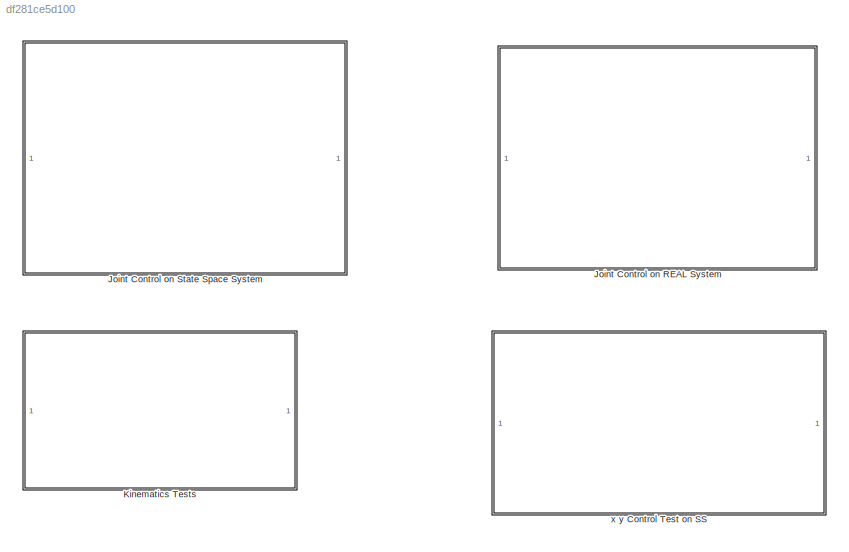
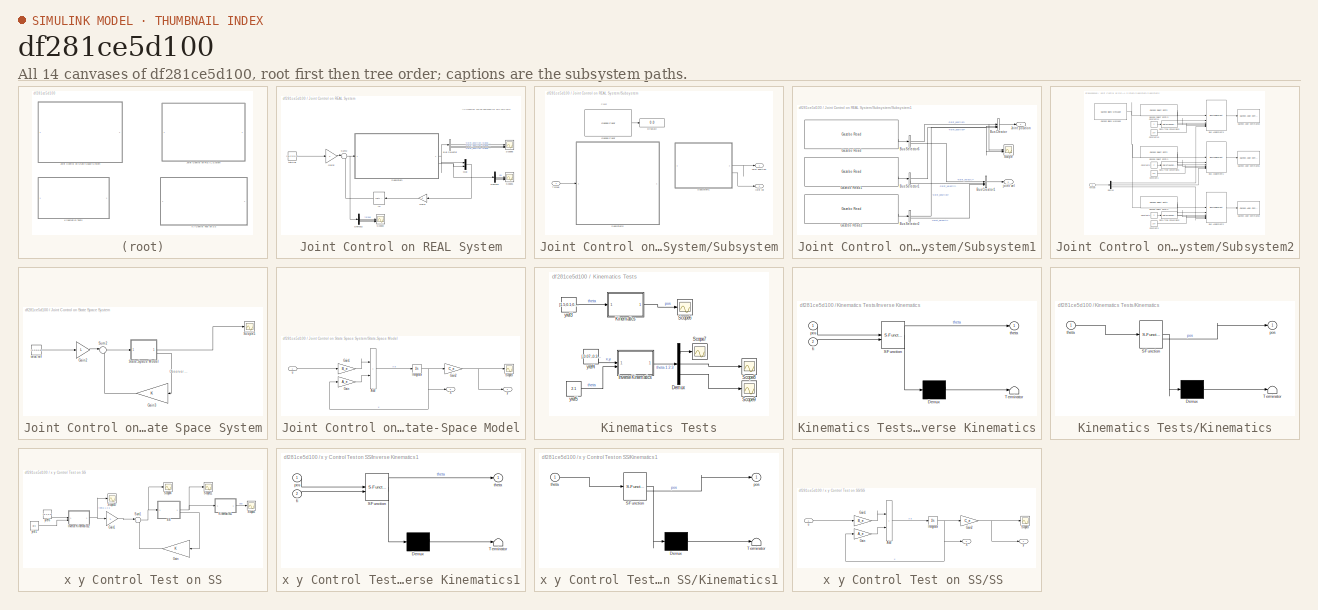
[diagram: thumbnail index - all 14 canvases of the model, root first then tree order]
MODEL slx_df281ce5d100
KIND model
CONFIG AbsTol = auto
CONFIG EnableMultiTasking = off
CONFIG FixedStep = 1e-4
CONFIG MaxStep = auto
CONFIG MinStep = auto
CONFIG RelTol = 1e-3
CONFIG SampleTimeConstraint = Unconstrained
CONFIG SolverName = ode5
CONFIG StartTime = 0.0
CONFIG StopTime = 0.5
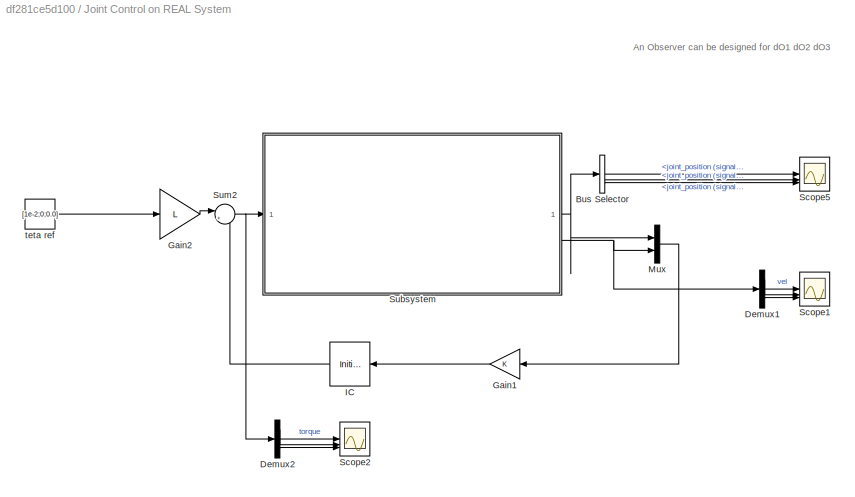
BLOCK [SubSystem] Joint Control on REAL System
BLOCK [BusSelector] Joint Control on REAL System/Bus Selector
  OutputSignals = joint_position (signal 1),joint_position (signal 2),joint_position (signal 3)
BLOCK [Demux] Joint Control on REAL System/Demux1
  Outputs = 3
BLOCK [Demux] Joint Control on REAL System/Demux2
  Outputs = 3
BLOCK [Gain] Joint Control on REAL System/Gain1
  Gain = K
  Multiplication = Matrix(K*u)
BLOCK [Gain] Joint Control on REAL System/Gain2
  Gain = L
  Multiplication = Matrix(K*u)
BLOCK [InitialCondition] Joint Control on REAL System/IC
  Value = 0
BLOCK [Mux] Joint Control on REAL System/Mux
  DisplayOption = bar
  Inputs = 2
BLOCK [Scope] Joint Control on REAL System/Scope1
  Floating = off
  NumInputPorts = 3
  ScopeSpecificationString = Simulink.scopes.TimeScopeBlockCfg('CurrentConfiguration', extmgr.ConfigurationSet(extmgr.Configuration('Core','General UI',true),extmgr.Configuration('Core','Source UI',true),extmgr.Configuration('Sources','WiredSimulink',true,'DataLoggingVariableName','ScopeData2'),extmgr.Configuration('Visuals','Time Domain',true,'SerializedDisplays',{struct('MinYLimReal','-0.76648','MaxYLimReal','6.89828','YLab...<+1488ch>
BLOCK [Scope] Joint Control on REAL System/Scope2
  Floating = off
  NumInputPorts = 3
  ScopeSpecificationString = Simulink.scopes.TimeScopeBlockCfg('CurrentConfiguration', extmgr.ConfigurationSet(extmgr.Configuration('Core','General UI',true),extmgr.Configuration('Core','Source UI',true),extmgr.Configuration('Sources','WiredSimulink',true,'DataLoggingVariableName','ScopeData3'),extmgr.Configuration('Visuals','Time Domain',true,'SerializedDisplays',{struct('MinYLimReal','-0.125','MaxYLimReal','1.125','YLabelRe...<+1568ch>
BLOCK [Scope] Joint Control on REAL System/Scope5
  Floating = off
  NumInputPorts = 3
  ScopeSpecificationString = Simulink.scopes.TimeScopeBlockCfg('CurrentConfiguration', extmgr.ConfigurationSet(extmgr.Configuration('Core','General UI',true),extmgr.Configuration('Core','Source UI',true),extmgr.Configuration('Sources','WiredSimulink',true,'DataLoggingVariableName','ScopeData1'),extmgr.Configuration('Visuals','Time Domain',true,'SerializedDisplays',{struct('MinYLimReal','-0.00077','MaxYLimReal','0.0069','YLabe...<+1615ch>
BLOCK [SubSystem] Joint Control on REAL System/Subsystem
BLOCK [Display] Joint Control on REAL System/Subsystem/Display2
  Decimation = 1
BLOCK [Reference] Joint Control on REAL System/Subsystem/Gazebo Pacer  REF=robotgazebolib/Gazebo Pacer
  SourceBlock = robotgazebolib/Gazebo Pacer
  SourceType = Gazebo Pacer
BLOCK [Outport] Joint Control on REAL System/Subsystem/Joint position
BLOCK [SubSystem] Joint Control on REAL System/Subsystem/Subsystem1
BLOCK [BusCreator] Joint Control on REAL System/Subsystem/Subsystem1/Bus Creator
  DisplayOption = bar
  InheritFromInputs = on
  Inputs = 3
BLOCK [BusCreator] Joint Control on REAL System/Subsystem/Subsystem1/Bus Creator1
  DisplayOption = bar
  InheritFromInputs = on
  Inputs = 3
BLOCK [BusSelector] Joint Control on REAL System/Subsystem/Subsystem1/Bus Selector1
  OutputSignals = joint_position,joint_velocity
BLOCK [BusSelector] Joint Control on REAL System/Subsystem/Subsystem1/Bus Selector2
  OutputSignals = joint_position,joint_velocity
BLOCK [BusSelector] Joint Control on REAL System/Subsystem/Subsystem1/Bus Selector6
  OutputSignals = joint_position,joint_velocity
BLOCK [Reference] Joint Control on REAL System/Subsystem/Subsystem1/Gazebo Read  REF=robotgazebolib/Gazebo Read
  SourceBlock = robotgazebolib/Gazebo Read
  SourceType = Gazebo Read
BLOCK [Reference] Joint Control on REAL System/Subsystem/Subsystem1/Gazebo Read1  REF=robotgazebolib/Gazebo Read
  SourceBlock = robotgazebolib/Gazebo Read
  SourceType = Gazebo Read
BLOCK [Reference] Joint Control on REAL System/Subsystem/Subsystem1/Gazebo Read2  REF=robotgazebolib/Gazebo Read
  SourceBlock = robotgazebolib/Gazebo Read
  SourceType = Gazebo Read
BLOCK [Outport] Joint Control on REAL System/Subsystem/Subsystem1/Joint position
BLOCK [Scope] Joint Control on REAL System/Subsystem/Subsystem1/Scope
  Floating = off
  NumInputPorts = 2
  ScopeSpecificationString = Simulink.scopes.TimeScopeBlockCfg('CurrentConfiguration', extmgr.ConfigurationSet(extmgr.Configuration('Core','General UI',true),extmgr.Configuration('Core','Source UI',true),extmgr.Configuration('Sources','WiredSimulink',true,'DataLoggingVariableName','ScopeData1'),extmgr.Configuration('Visuals','Time Domain',true,'SerializedDisplays',{struct('MinYLimReal','-3.74526','MaxYLimReal','3.87638','YLab...<+7030ch>
BLOCK [Outport] Joint Control on REAL System/Subsystem/Subsystem1/joint vel
  Port = 2
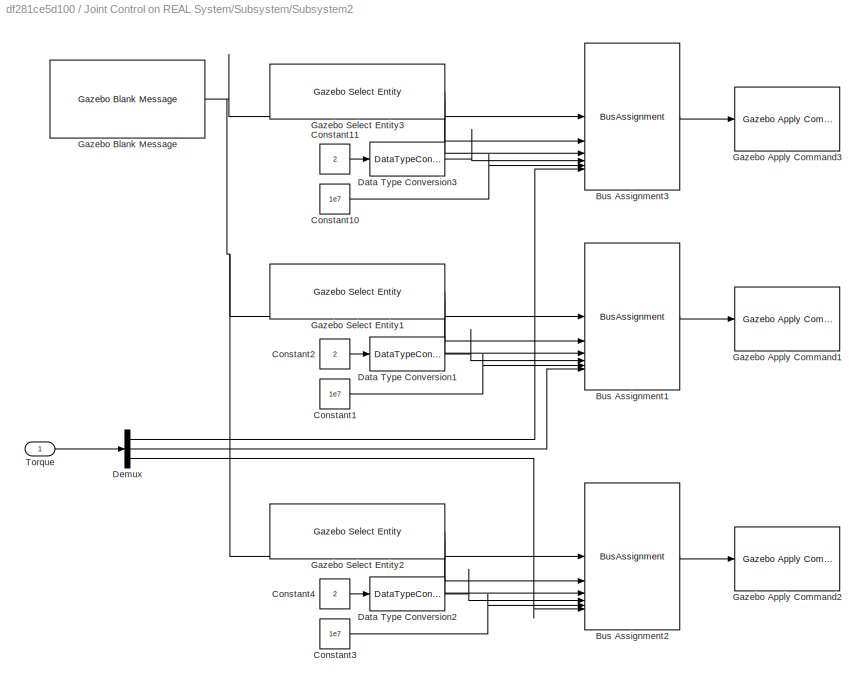
BLOCK [SubSystem] Joint Control on REAL System/Subsystem/Subsystem2
BLOCK [BusAssignment] Joint Control on REAL System/Subsystem/Subsystem2/Bus Assignment1
  AssignedSignals = model_name,joint_name,index,duration.nano_seconds,effort
BLOCK [BusAssignment] Joint Control on REAL System/Subsystem/Subsystem2/Bus Assignment2
  AssignedSignals = model_name,joint_name,index,duration.nano_seconds,effort
BLOCK [BusAssignment] Joint Control on REAL System/Subsystem/Subsystem2/Bus Assignment3
  AssignedSignals = model_name,joint_name,index,duration.nano_seconds,effort
BLOCK [Constant] Joint Control on REAL System/Subsystem/Subsystem2/Constant1
  Value = 1e7
BLOCK [Constant] Joint Control on REAL System/Subsystem/Subsystem2/Constant10
  Value = 1e7
BLOCK [Constant] Joint Control on REAL System/Subsystem/Subsystem2/Constant11
  Value = 2
BLOCK [Constant] Joint Control on REAL System/Subsystem/Subsystem2/Constant2
  Value = 2
BLOCK [Constant] Joint Control on REAL System/Subsystem/Subsystem2/Constant3
  Value = 1e7
BLOCK [Constant] Joint Control on REAL System/Subsystem/Subsystem2/Constant4
  Value = 2
BLOCK [DataTypeConversion] Joint Control on REAL System/Subsystem/Subsystem2/Data Type Conversion1
  OutDataTypeStr = uint32
  RndMeth = Floor
  SaturateOnIntegerOverflow = off
BLOCK [DataTypeConversion] Joint Control on REAL System/Subsystem/Subsystem2/Data Type Conversion2
  OutDataTypeStr = uint32
  RndMeth = Floor
  SaturateOnIntegerOverflow = off
BLOCK [DataTypeConversion] Joint Control on REAL System/Subsystem/Subsystem2/Data Type Conversion3
  OutDataTypeStr = uint32
  RndMeth = Floor
  SaturateOnIntegerOverflow = off
BLOCK [Demux] Joint Control on REAL System/Subsystem/Subsystem2/Demux
  Outputs = 3
BLOCK [Reference] Joint Control on REAL System/Subsystem/Subsystem2/Gazebo Apply Command1  REF=robotgazebolib/Gazebo Apply Command
  SourceBlock = robotgazebolib/Gazebo Apply Command
  SourceType = Gazebo Apply Command
BLOCK [Reference] Joint Control on REAL System/Subsystem/Subsystem2/Gazebo Apply Command2  REF=robotgazebolib/Gazebo Apply Command
  SourceBlock = robotgazebolib/Gazebo Apply Command
  SourceType = Gazebo Apply Command
BLOCK [Reference] Joint Control on REAL System/Subsystem/Subsystem2/Gazebo Apply Command3  REF=robotgazebolib/Gazebo Apply Command
  SourceBlock = robotgazebolib/Gazebo Apply Command
  SourceType = Gazebo Apply Command
BLOCK [Reference] Joint Control on REAL System/Subsystem/Subsystem2/Gazebo Blank Message  REF=robotgazebolib/Gazebo Blank Message
  SourceBlock = robotgazebolib/Gazebo Blank Message
  SourceType = Gazebo Blank Message
BLOCK [Reference] Joint Control on REAL System/Subsystem/Subsystem2/Gazebo Select Entity1  REF=robotgazebolib/Gazebo Select Entity
  SourceBlock = robotgazebolib/Gazebo Select Entity
  SourceType = Gazebo Select Entity
BLOCK [Reference] Joint Control on REAL System/Subsystem/Subsystem2/Gazebo Select Entity2  REF=robotgazebolib/Gazebo Select Entity
  SourceBlock = robotgazebolib/Gazebo Select Entity
  SourceType = Gazebo Select Entity
BLOCK [Reference] Joint Control on REAL System/Subsystem/Subsystem2/Gazebo Select Entity3  REF=robotgazebolib/Gazebo Select Entity
  SourceBlock = robotgazebolib/Gazebo Select Entity
  SourceType = Gazebo Select Entity
BLOCK [Inport] Joint Control on REAL System/Subsystem/Subsystem2/Torque
BLOCK [Inport] Joint Control on REAL System/Subsystem/Torque
BLOCK [Outport] Joint Control on REAL System/Subsystem/joint vel
  Port = 2
BLOCK [Sum] Joint Control on REAL System/Sum2
  Inputs = |+-
BLOCK [Constant] Joint Control on REAL System/teta ref
  Value = [1e-2;0;0.0]
BLOCK [SubSystem] Joint Control on State Space System
  Commented = on
BLOCK [Gain] Joint Control on State Space System/Gain2
  Gain = L
  Multiplication = Matrix(K*u)
BLOCK [Gain] Joint Control on State Space System/Gain3
  Gain = K
  Multiplication = Matrix(K*u)
BLOCK [Scope] Joint Control on State Space System/Scope5
  Floating = off
  NumInputPorts = 1
  ScopeSpecificationString = Simulink.scopes.TimeScopeBlockCfg('CurrentConfiguration', extmgr.ConfigurationSet(extmgr.Configuration('Core','General UI',true),extmgr.Configuration('Core','Source UI',true),extmgr.Configuration('Sources','WiredSimulink',true,'DataLoggingVariableName','ScopeData1'),extmgr.Configuration('Visuals','Time Domain',true,'SerializedDisplays',{struct('MinYLimReal','-0.02658','MaxYLimReal','0.23557','YLab...<+1623ch>
BLOCK [SubSystem] Joint Control on State Space System/State-Space Model
BLOCK [Sum] Joint Control on State Space System/State-Space Model/Add
  IconShape = rectangular
BLOCK [Gain] Joint Control on State Space System/State-Space Model/Gain
  Gain = A_e
  Multiplication = Matrix(K*u)
BLOCK [Gain] Joint Control on State Space System/State-Space Model/Gain1
  Gain = B_e
  Multiplication = Matrix(K*u)
BLOCK [Gain] Joint Control on State Space System/State-Space Model/Gain2
  Gain = C_e
  Multiplication = Matrix(K*u)
BLOCK [Integrator] Joint Control on State Space System/State-Space Model/Integrator
BLOCK [Scope] Joint Control on State Space System/State-Space Model/Scope3
  Floating = off
  NumInputPorts = 1
  ScopeSpecificationString = Simulink.scopes.TimeScopeBlockCfg('CurrentConfiguration', extmgr.ConfigurationSet(extmgr.Configuration('Core','General UI',true),extmgr.Configuration('Core','Source UI',true),extmgr.Configuration('Sources','WiredSimulink',true,'DataLoggingVariableName','ScopeData1'),extmgr.Configuration('Visuals','Time Domain',true,'SerializedDisplays',{struct('MinYLimReal','-0.02658','MaxYLimReal','0.23557','YLab...<+1384ch>
BLOCK [Outport] Joint Control on State Space System/State-Space Model/X
  Port = 2
BLOCK [Inport] Joint Control on State Space System/State-Space Model/u
BLOCK [Outport] Joint Control on State Space System/State-Space Model/y
BLOCK [Sum] Joint Control on State Space System/Sum2
  Inputs = |+-
BLOCK [Constant] Joint Control on State Space System/teta ref
  Value = [0.2;0;0.5]
BLOCK [SubSystem] Kinematics Tests
  Commented = on
BLOCK [Demux] Kinematics Tests/Demux
  Commented = on
  Outputs = 3
BLOCK [SubSystem] Kinematics Tests/Inverse Kinematics
  Commented = on
  ErrorFcn = Stateflow.Translate.translate
  LibrarySourceBlock = simulink/User-Defined\nFunctions/MATLAB Function
  PermitHierarchicalResolution = ExplicitOnly
  SFBlockType = MATLAB Function
  TreatAsAtomicUnit = on
BLOCK [Demux] Kinematics Tests/Inverse Kinematics/ Demux 
  Outputs = 1
BLOCK [S-Function] Kinematics Tests/Inverse Kinematics/ SFunction 
  EnableBusSupport = on
  FunctionName = sf_sfun
  PortCounts = [2 2]
  SFcnIsStateOwnerBlock = off
  SFunctionDeploymentMode = off
  Tag = Stateflow S-Function 7
BLOCK [Terminator] Kinematics Tests/Inverse Kinematics/ Terminator 
BLOCK [Inport] Kinematics Tests/Inverse Kinematics/fi
  Port = 2
BLOCK [Inport] Kinematics Tests/Inverse Kinematics/pos
BLOCK [Outport] Kinematics Tests/Inverse Kinematics/theta
BLOCK [SubSystem] Kinematics Tests/Kinematics
  Commented = on
  ErrorFcn = Stateflow.Translate.translate
  LibrarySourceBlock = simulink/User-Defined\nFunctions/MATLAB Function
  PermitHierarchicalResolution = ExplicitOnly
  SFBlockType = MATLAB Function
  TreatAsAtomicUnit = on
BLOCK [Demux] Kinematics Tests/Kinematics/ Demux 
  Outputs = 1
BLOCK [S-Function] Kinematics Tests/Kinematics/ SFunction 
  EnableBusSupport = on
  FunctionName = sf_sfun
  PortCounts = [1 2]
  SFcnIsStateOwnerBlock = off
  SFunctionDeploymentMode = off
  Tag = Stateflow S-Function 6
BLOCK [Terminator] Kinematics Tests/Kinematics/ Terminator 
BLOCK [Outport] Kinematics Tests/Kinematics/pos
BLOCK [Inport] Kinematics Tests/Kinematics/theta
BLOCK [Scope] Kinematics Tests/Scope6
  Commented = on
  Floating = off
  NumInputPorts = 1
  ScopeSpecificationString = Simulink.scopes.TimeScopeBlockCfg('CurrentConfiguration', extmgr.ConfigurationSet(extmgr.Configuration('Core','General UI',true),extmgr.Configuration('Core','Source UI',true),extmgr.Configuration('Sources','WiredSimulink',true,'DataLoggingVariableName','ScopeData1'),extmgr.Configuration('Visuals','Time Domain',true,'SerializedDisplays',{struct('MinYLimReal','-0.12411','MaxYLimReal','0.43562','YLab...<+1426ch>
BLOCK [Scope] Kinematics Tests/Scope7
  Commented = on
  Floating = off
  NumInputPorts = 1
  ScopeSpecificationString = Simulink.scopes.TimeScopeBlockCfg('CurrentConfiguration', extmgr.ConfigurationSet(extmgr.Configuration('Core','General UI',true),extmgr.Configuration('Core','Source UI',true),extmgr.Configuration('Sources','WiredSimulink',true,'DataLoggingVariableName','ScopeData2'),extmgr.Configuration('Visuals','Time Domain',true,'SerializedDisplays',{struct('MinYLimReal','-1.01997','MaxYLimReal','-0.81997','YLa...<+1422ch>
BLOCK [Scope] Kinematics Tests/Scope8
  Commented = on
  Floating = off
  NumInputPorts = 1
  ScopeSpecificationString = Simulink.scopes.TimeScopeBlockCfg('CurrentConfiguration', extmgr.ConfigurationSet(extmgr.Configuration('Core','General UI',true),extmgr.Configuration('Core','Source UI',true),extmgr.Configuration('Sources','WiredSimulink',true,'DataLoggingVariableName','ScopeData3'),extmgr.Configuration('Visuals','Time Domain',true,'SerializedDisplays',{struct('MinYLimReal','0.37839','MaxYLimReal','2.37839','YLabe...<+1418ch>
BLOCK [Scope] Kinematics Tests/Scope9
  Commented = on
  Floating = off
  NumInputPorts = 1
  ScopeSpecificationString = Simulink.scopes.TimeScopeBlockCfg('CurrentConfiguration', extmgr.ConfigurationSet(extmgr.Configuration('Core','General UI',true),extmgr.Configuration('Core','Source UI',true),extmgr.Configuration('Sources','WiredSimulink',true,'DataLoggingVariableName','ScopeData4'),extmgr.Configuration('Visuals','Time Domain',true,'SerializedDisplays',{struct('MinYLimReal','0.64158','MaxYLimReal','2.64158','YLabe...<+1418ch>
BLOCK [Constant] Kinematics Tests/yref3
  Commented = on
  Value = [1.5;0.1;0.5]
BLOCK [Constant] Kinematics Tests/yref4
  Commented = on
  Value = [-0.07;-0.37]
BLOCK [Constant] Kinematics Tests/yref5
  Commented = on
  Value = 2.1
BLOCK [SubSystem] x y Control Test on SS
  Commented = on
BLOCK [Gain] x y Control Test on SS/Gain
  Gain = K
  Multiplication = Matrix(K*u)
BLOCK [Gain] x y Control Test on SS/Gain1
  Gain = L
  Multiplication = Matrix(K*u)
BLOCK [SubSystem] x y Control Test on SS/Inverse Kinematics1
  ErrorFcn = Stateflow.Translate.translate
  LibrarySourceBlock = simulink/User-Defined\nFunctions/MATLAB Function
  PermitHierarchicalResolution = ExplicitOnly
  SFBlockType = MATLAB Function
  TreatAsAtomicUnit = on
BLOCK [Demux] x y Control Test on SS/Inverse Kinematics1/ Demux 
  Outputs = 1
BLOCK [S-Function] x y Control Test on SS/Inverse Kinematics1/ SFunction 
  EnableBusSupport = on
  FunctionName = sf_sfun
  PortCounts = [2 2]
  SFcnIsStateOwnerBlock = off
  SFunctionDeploymentMode = off
  Tag = Stateflow S-Function 9
BLOCK [Terminator] x y Control Test on SS/Inverse Kinematics1/ Terminator 
BLOCK [Inport] x y Control Test on SS/Inverse Kinematics1/fi
  Port = 2
BLOCK [Inport] x y Control Test on SS/Inverse Kinematics1/pos
BLOCK [Outport] x y Control Test on SS/Inverse Kinematics1/theta
BLOCK [SubSystem] x y Control Test on SS/Kinematics1
  ErrorFcn = Stateflow.Translate.translate
  LibrarySourceBlock = simulink/User-Defined\nFunctions/MATLAB Function
  PermitHierarchicalResolution = ExplicitOnly
  SFBlockType = MATLAB Function
  TreatAsAtomicUnit = on
BLOCK [Demux] x y Control Test on SS/Kinematics1/ Demux 
  Outputs = 1
BLOCK [S-Function] x y Control Test on SS/Kinematics1/ SFunction 
  EnableBusSupport = on
  FunctionName = sf_sfun
  PortCounts = [1 2]
  SFcnIsStateOwnerBlock = off
  SFunctionDeploymentMode = off
  Tag = Stateflow S-Function 8
BLOCK [Terminator] x y Control Test on SS/Kinematics1/ Terminator 
BLOCK [Outport] x y Control Test on SS/Kinematics1/pos
BLOCK [Inport] x y Control Test on SS/Kinematics1/theta
BLOCK [SubSystem] x y Control Test on SS/SS 
BLOCK [Sum] x y Control Test on SS/SS /Add
  IconShape = rectangular
BLOCK [Gain] x y Control Test on SS/SS /Gain
  Gain = A_e
  Multiplication = Matrix(K*u)
BLOCK [Gain] x y Control Test on SS/SS /Gain1
  Gain = B_e
  Multiplication = Matrix(K*u)
BLOCK [Gain] x y Control Test on SS/SS /Gain2
  Gain = C_e
  Multiplication = Matrix(K*u)
BLOCK [Integrator] x y Control Test on SS/SS /Integrator
BLOCK [Scope] x y Control Test on SS/SS /Scope3
  Floating = off
  NumInputPorts = 1
  ScopeSpecificationString = Simulink.scopes.TimeScopeBlockCfg('CurrentConfiguration', extmgr.ConfigurationSet(extmgr.Configuration('Core','General UI',true),extmgr.Configuration('Core','Source UI',true),extmgr.Configuration('Sources','WiredSimulink',true,'DataLoggingVariableName','ScopeData1'),extmgr.Configuration('Visuals','Time Domain',true),extmgr.Configuration('Tools','Plot Navigation',true),extmgr.Configuration('Tools',...<+40ch>
BLOCK [Outport] x y Control Test on SS/SS /X
  Port = 2
BLOCK [Inport] x y Control Test on SS/SS /u
BLOCK [Outport] x y Control Test on SS/SS /y
BLOCK [Scope] x y Control Test on SS/Scope10
  Floating = off
  NumInputPorts = 1
  ScopeSpecificationString = Simulink.scopes.TimeScopeBlockCfg('CurrentConfiguration', extmgr.ConfigurationSet(extmgr.Configuration('Core','General UI',true),extmgr.Configuration('Core','Source UI',true),extmgr.Configuration('Sources','WiredSimulink',true,'DataLoggingVariableName','ScopeData5'),extmgr.Configuration('Visuals','Time Domain',true,'SerializedDisplays',{struct('MinYLimReal','-2.00514','MaxYLimReal','3.01844','YLab...<+1477ch>
BLOCK [Scope] x y Control Test on SS/Scope11
  Floating = off
  NumInputPorts = 1
  ScopeSpecificationString = Simulink.scopes.TimeScopeBlockCfg('CurrentConfiguration', extmgr.ConfigurationSet(extmgr.Configuration('Core','General UI',true),extmgr.Configuration('Core','Source UI',true),extmgr.Configuration('Sources','WiredSimulink',true,'DataLoggingVariableName','ScopeData6'),extmgr.Configuration('Visuals','Time Domain',true,'SerializedDisplays',{struct('MinYLimReal','-1.82912','MaxYLimReal','2.96663','YLab...<+1459ch>
BLOCK [Scope] x y Control Test on SS/Scope3
  Floating = off
  NumInputPorts = 1
  ScopeSpecificationString = Simulink.scopes.TimeScopeBlockCfg('CurrentConfiguration', extmgr.ConfigurationSet(extmgr.Configuration('Core','General UI',true),extmgr.Configuration('Core','Source UI',true),extmgr.Configuration('Sources','WiredSimulink',true,'DataLoggingVariableName','ScopeData3'),extmgr.Configuration('Visuals','Time Domain',true,'SerializedDisplays',{struct('MinYLimReal','-0.05001','MaxYLimReal','0.45','YLabelR...<+1414ch>
BLOCK [Scope] x y Control Test on SS/Scope4
  Floating = off
  NumInputPorts = 1
  ScopeSpecificationString = Simulink.scopes.TimeScopeBlockCfg('CurrentConfiguration', extmgr.ConfigurationSet(extmgr.Configuration('Core','General UI',true),extmgr.Configuration('Core','Source UI',true),extmgr.Configuration('Sources','WiredSimulink',true,'DataLoggingVariableName','ScopeData4'),extmgr.Configuration('Visuals','Time Domain',true,'SerializedDisplays',{struct('MinYLimReal','-0.65774','MaxYLimReal','0.92784','YLab...<+1456ch>
BLOCK [Sum] x y Control Test on SS/Sum1
  Inputs = |+-
BLOCK [Constant] x y Control Test on SS/yref1
  Value = pi/3
BLOCK [Constant] x y Control Test on SS/yref6
  Value = [0.1;0.2]
ANNOTATION Joint Control on REAL System: An Observer can be designed for dO1 dO2 dO3
ANNOTATION Joint Control on REAL System/Subsystem: Pacer
ANNOTATION Joint Control on State Space System: Observer ...
LINE Joint Control on REAL System/Bus Selector:1 -> Joint Control on REAL System/Scope5:1
LINE Joint Control on REAL System/Bus Selector:2 -> Joint Control on REAL System/Scope5:2
LINE Joint Control on REAL System/Bus Selector:3 -> Joint Control on REAL System/Scope5:3
LINE Joint Control on REAL System/Demux1:1 -> Joint Control on REAL System/Scope1:1
LINE Joint Control on REAL System/Demux1:2 -> Joint Control on REAL System/Scope1:2
LINE Joint Control on REAL System/Demux1:3 -> Joint Control on REAL System/Scope1:3
LINE Joint Control on REAL System/Demux2:1 -> Joint Control on REAL System/Scope2:1
LINE Joint Control on REAL System/Demux2:2 -> Joint Control on REAL System/Scope2:2
LINE Joint Control on REAL System/Demux2:3 -> Joint Control on REAL System/Scope2:3
LINE Joint Control on REAL System/Gain1:1 -> Joint Control on REAL System/IC:1
LINE Joint Control on REAL System/Gain2:1 -> Joint Control on REAL System/Sum2:1
LINE Joint Control on REAL System/IC:1 -> Joint Control on REAL System/Sum2:2
LINE Joint Control on REAL System/Mux:1 -> Joint Control on REAL System/Gain1:1
LINE Joint Control on REAL System/Subsystem/Gazebo Pacer:1 -> Joint Control on REAL System/Subsystem/Display2:1
LINE Joint Control on REAL System/Subsystem/Subsystem1/Bus Creator1:1 -> Joint Control on REAL System/Subsystem/Subsystem1/joint vel:1
LINE Joint Control on REAL System/Subsystem/Subsystem1/Bus Creator:1 -> Joint Control on REAL System/Subsystem/Subsystem1/Joint position:1
NET Joint Control on REAL System/Subsystem/Subsystem1/Bus Selector1:1 -> Joint Control on REAL System/Subsystem/Subsystem1/Bus Creator:2, Joint Control on REAL System/Subsystem/Subsystem1/Scope:2
LINE Joint Control on REAL System/Subsystem/Subsystem1/Bus Selector1:2 -> Joint Control on REAL System/Subsystem/Subsystem1/Bus Creator1:2
LINE Joint Control on REAL System/Subsystem/Subsystem1/Bus Selector2:1 -> Joint Control on REAL System/Subsystem/Subsystem1/Bus Creator:3
LINE Joint Control on REAL System/Subsystem/Subsystem1/Bus Selector2:2 -> Joint Control on REAL System/Subsystem/Subsystem1/Bus Creator1:3
NET Joint Control on REAL System/Subsystem/Subsystem1/Bus Selector6:1 -> Joint Control on REAL System/Subsystem/Subsystem1/Bus Creator:1, Joint Control on REAL System/Subsystem/Subsystem1/Scope:1
LINE Joint Control on REAL System/Subsystem/Subsystem1/Bus Selector6:2 -> Joint Control on REAL System/Subsystem/Subsystem1/Bus Creator1:1
LINE Joint Control on REAL System/Subsystem/Subsystem1/Gazebo Read1:2 -> Joint Control on REAL System/Subsystem/Subsystem1/Bus Selector1:1
LINE Joint Control on REAL System/Subsystem/Subsystem1/Gazebo Read2:2 -> Joint Control on REAL System/Subsystem/Subsystem1/Bus Selector2:1
LINE Joint Control on REAL System/Subsystem/Subsystem1/Gazebo Read:2 -> Joint Control on REAL System/Subsystem/Subsystem1/Bus Selector6:1
LINE Joint Control on REAL System/Subsystem/Subsystem1:1 -> Joint Control on REAL System/Subsystem/Joint position:1
LINE Joint Control on REAL System/Subsystem/Subsystem1:2 -> Joint Control on REAL System/Subsystem/joint vel:1
LINE Joint Control on REAL System/Subsystem/Subsystem2/Bus Assignment1:1 -> Joint Control on REAL System/Subsystem/Subsystem2/Gazebo Apply Command1:1
LINE Joint Control on REAL System/Subsystem/Subsystem2/Bus Assignment2:1 -> Joint Control on REAL System/Subsystem/Subsystem2/Gazebo Apply Command2:1
LINE Joint Control on REAL System/Subsystem/Subsystem2/Bus Assignment3:1 -> Joint Control on REAL System/Subsystem/Subsystem2/Gazebo Apply Command3:1
LINE Joint Control on REAL System/Subsystem/Subsystem2/Constant10:1 -> Joint Control on REAL System/Subsystem/Subsystem2/Bus Assignment3:5
LINE Joint Control on REAL System/Subsystem/Subsystem2/Constant11:1 -> Joint Control on REAL System/Subsystem/Subsystem2/Data Type Conversion3:1
LINE Joint Control on REAL System/Subsystem/Subsystem2/Constant1:1 -> Joint Control on REAL System/Subsystem/Subsystem2/Bus Assignment1:5
LINE Joint Control on REAL System/Subsystem/Subsystem2/Constant2:1 -> Joint Control on REAL System/Subsystem/Subsystem2/Data Type Conversion1:1
LINE Joint Control on REAL System/Subsystem/Subsystem2/Constant3:1 -> Joint Control on REAL System/Subsystem/Subsystem2/Bus Assignment2:5
LINE Joint Control on REAL System/Subsystem/Subsystem2/Constant4:1 -> Joint Control on REAL System/Subsystem/Subsystem2/Data Type Conversion2:1
LINE Joint Control on REAL System/Subsystem/Subsystem2/Data Type Conversion1:1 -> Joint Control on REAL System/Subsystem/Subsystem2/Bus Assignment1:4
LINE Joint Control on REAL System/Subsystem/Subsystem2/Data Type Conversion2:1 -> Joint Control on REAL System/Subsystem/Subsystem2/Bus Assignment2:4
LINE Joint Control on REAL System/Subsystem/Subsystem2/Data Type Conversion3:1 -> Joint Control on REAL System/Subsystem/Subsystem2/Bus Assignment3:4
LINE Joint Control on REAL System/Subsystem/Subsystem2/Demux:1 -> Joint Control on REAL System/Subsystem/Subsystem2/Bus Assignment3:6
LINE Joint Control on REAL System/Subsystem/Subsystem2/Demux:2 -> Joint Control on REAL System/Subsystem/Subsystem2/Bus Assignment1:6
LINE Joint Control on REAL System/Subsystem/Subsystem2/Demux:3 -> Joint Control on REAL System/Subsystem/Subsystem2/Bus Assignment2:6
NET Joint Control on REAL System/Subsystem/Subsystem2/Gazebo Blank Message:1 -> Joint Control on REAL System/Subsystem/Subsystem2/Bus Assignment1:1, Joint Control on REAL System/Subsystem/Subsystem2/Bus Assignment2:1, Joint Control on REAL System/Subsystem/Subsystem2/Bus Assignment3:1
LINE Joint Control on REAL System/Subsystem/Subsystem2/Gazebo Select Entity1:1 -> Joint Control on REAL System/Subsystem/Subsystem2/Bus Assignment1:2
LINE Joint Control on REAL System/Subsystem/Subsystem2/Gazebo Select Entity1:2 -> Joint Control on REAL System/Subsystem/Subsystem2/Bus Assignment1:3
LINE Joint Control on REAL System/Subsystem/Subsystem2/Gazebo Select Entity2:1 -> Joint Control on REAL System/Subsystem/Subsystem2/Bus Assignment2:2
LINE Joint Control on REAL System/Subsystem/Subsystem2/Gazebo Select Entity2:2 -> Joint Control on REAL System/Subsystem/Subsystem2/Bus Assignment2:3
LINE Joint Control on REAL System/Subsystem/Subsystem2/Gazebo Select Entity3:1 -> Joint Control on REAL System/Subsystem/Subsystem2/Bus Assignment3:2
LINE Joint Control on REAL System/Subsystem/Subsystem2/Gazebo Select Entity3:2 -> Joint Control on REAL System/Subsystem/Subsystem2/Bus Assignment3:3
LINE Joint Control on REAL System/Subsystem/Subsystem2/Torque:1 -> Joint Control on REAL System/Subsystem/Subsystem2/Demux:1
LINE Joint Control on REAL System/Subsystem/Torque:1 -> Joint Control on REAL System/Subsystem/Subsystem2:1
NET Joint Control on REAL System/Subsystem:1 -> Joint Control on REAL System/Bus Selector:1, Joint Control on REAL System/Mux:1
NET Joint Control on REAL System/Subsystem:2 -> Joint Control on REAL System/Demux1:1, Joint Control on REAL System/Mux:2
NET Joint Control on REAL System/Sum2:1 -> Joint Control on REAL System/Demux2:1, Joint Control on REAL System/Subsystem:1
LINE Joint Control on REAL System/teta ref:1 -> Joint Control on REAL System/Gain2:1
LINE Joint Control on State Space System/Gain2:1 -> Joint Control on State Space System/Sum2:1
LINE Joint Control on State Space System/Gain3:1 -> Joint Control on State Space System/Sum2:2
LINE Joint Control on State Space System/State-Space Model/Add:1 -> Joint Control on State Space System/State-Space Model/Integrator:1
LINE Joint Control on State Space System/State-Space Model/Gain1:1 -> Joint Control on State Space System/State-Space Model/Add:1
NET Joint Control on State Space System/State-Space Model/Gain2:1 -> Joint Control on State Space System/State-Space Model/Scope3:1, Joint Control on State Space System/State-Space Model/y:1
LINE Joint Control on State Space System/State-Space Model/Gain:1 -> Joint Control on State Space System/State-Space Model/Add:2
NET Joint Control on State Space System/State-Space Model/Integrator:1 -> Joint Control on State Space System/State-Space Model/Gain2:1, Joint Control on State Space System/State-Space Model/Gain:1, Joint Control on State Space System/State-Space Model/X:1
LINE Joint Control on State Space System/State-Space Model/u:1 -> Joint Control on State Space System/State-Space Model/Gain1:1
LINE Joint Control on State Space System/State-Space Model:1 -> Joint Control on State Space System/Scope5:1
LINE Joint Control on State Space System/State-Space Model:2 -> Joint Control on State Space System/Gain3:1
LINE Joint Control on State Space System/Sum2:1 -> Joint Control on State Space System/State-Space Model:1
LINE Joint Control on State Space System/teta ref:1 -> Joint Control on State Space System/Gain2:1
LINE Kinematics Tests/Demux:1 -> Kinematics Tests/Scope7:1
LINE Kinematics Tests/Demux:2 -> Kinematics Tests/Scope8:1
LINE Kinematics Tests/Demux:3 -> Kinematics Tests/Scope9:1
LINE Kinematics Tests/Inverse Kinematics:1 -> Kinematics Tests/Demux:1
LINE Kinematics Tests/Kinematics:1 -> Kinematics Tests/Scope6:1
LINE Kinematics Tests/yref3:1 -> Kinematics Tests/Kinematics:1
LINE Kinematics Tests/yref4:1 -> Kinematics Tests/Inverse Kinematics:1
LINE Kinematics Tests/yref5:1 -> Kinematics Tests/Inverse Kinematics:2
LINE x y Control Test on SS/Gain1:1 -> x y Control Test on SS/Sum1:1
LINE x y Control Test on SS/Gain:1 -> x y Control Test on SS/Sum1:2
NET x y Control Test on SS/Inverse Kinematics1:1 -> x y Control Test on SS/Gain1:1, x y Control Test on SS/Scope10:1
LINE x y Control Test on SS/Kinematics1:1 -> x y Control Test on SS/Scope3:1
LINE x y Control Test on SS/SS /Add:1 -> x y Control Test on SS/SS /Integrator:1
LINE x y Control Test on SS/SS /Gain1:1 -> x y Control Test on SS/SS /Add:1
NET x y Control Test on SS/SS /Gain2:1 -> x y Control Test on SS/SS /Scope3:1, x y Control Test on SS/SS /y:1
LINE x y Control Test on SS/SS /Gain:1 -> x y Control Test on SS/SS /Add:2
NET x y Control Test on SS/SS /Integrator:1 -> x y Control Test on SS/SS /Gain2:1, x y Control Test on SS/SS /Gain:1, x y Control Test on SS/SS /X:1
LINE x y Control Test on SS/SS /u:1 -> x y Control Test on SS/SS /Gain1:1
NET x y Control Test on SS/SS :1 -> x y Control Test on SS/Kinematics1:1, x y Control Test on SS/Scope11:1
LINE x y Control Test on SS/SS :2 -> x y Control Test on SS/Gain:1
NET x y Control Test on SS/Sum1:1 -> x y Control Test on SS/SS :1, x y Control Test on SS/Scope4:1
LINE x y Control Test on SS/yref1:1 -> x y Control Test on SS/Inverse Kinematics1:2
LINE x y Control Test on SS/yref6:1 -> x y Control Test on SS/Inverse Kinematics1:1
note: NET lines group one-source signal fan-out (src -> all destinations, sorted); 1:1 wires keep LINE
CHART Kinematics Tests/Inverse Kinematics states=1 transitions=1
  STATE_LABEL 'eML_blk_kernel()'
  STATE_LABEL 'SCRIPT:\nfunction theta= fcn(pos, fi)\n\n% Masses des membres\nm1 = 1.3850917e-01; % masse du membre inférieur\nm2 = 1.3274562e-01; % masse du membre secondaire\nm3 = 1.4327573e-01; % masse de la pince\n\n% Longueurs des membres\nl1 = 0.13; % longueur du membre inférieur\nl2 = 0.124; % longueur du membre secondaire\nl3 = 0.146; % longueur de la pince\n\nx = pos(1);\ny = pos(2);\n\n\nxB = x - l3*cos(fi);\nyB = x - l...<+207ch>'
CHART x y Control Test on SS/Kinematics1 states=1 transitions=1
  STATE_LABEL 'eML_blk_kernel()'
  STATE_LABEL 'SCRIPT:\nfunction pos= fcn(theta)\n\n% Masses des membres\nm1 = 1.3850917e-01; % masse du membre inférieur\nm2 = 1.3274562e-01; % masse du membre secondaire\nm3 = 1.4327573e-01; % masse de la pince\n\n% Longueurs des membres\nl1 = 0.13; % longueur du membre inférieur\nl2 = 0.124; % longueur du membre secondaire\nl3 = 0.146; % longueur de la pince\n\ntheta1 = theta(1);\ntheta2 = theta(2);\ntheta3 = theta(3);\n\nx =...<+165ch>'
CHART x y Control Test on SS/Inverse Kinematics1 states=1 transitions=1
  STATE_LABEL 'eML_blk_kernel()'
  STATE_LABEL 'SCRIPT:\nfunction theta= fcn(pos, fi)\n\n% Masses des membres\nm1 = 1.3850917e-01; % masse du membre inférieur\nm2 = 1.3274562e-01; % masse du membre secondaire\nm3 = 1.4327573e-01; % masse de la pince\n\n% Longueurs des membres\nl1 = 0.13; % longueur du membre inférieur\nl2 = 0.124; % longueur du membre secondaire\nl3 = 0.146; % longueur de la pince\n\nx = pos(1);\ny = pos(2);\n\n\nxB = x - l3*cos(fi);\nyB = y - l...<+207ch>'
CHART Kinematics Tests/Kinematics states=1 transitions=1
  STATE_LABEL 'eML_blk_kernel()'
  STATE_LABEL 'SCRIPT:\nfunction pos= fcn(theta)\n\n% Masses des membres\nm1 = 1.3850917e-01; % masse du membre inférieur\nm2 = 1.3274562e-01; % masse du membre secondaire\nm3 = 1.4327573e-01; % masse de la pince\n\n% Longueurs des membres\nl1 = 0.13; % longueur du membre inférieur\nl2 = 0.124; % longueur du membre secondaire\nl3 = 0.146; % longueur de la pince\n\ntheta1 = theta(1);\ntheta2 = theta(2);\ntheta3 = theta(3);\n\nx =...<+165ch>'
CHART  states=0 transitions=0
CHART  states=0 transitions=0
CHART  states=0 transitions=0
CHART  states=0 transitions=0
